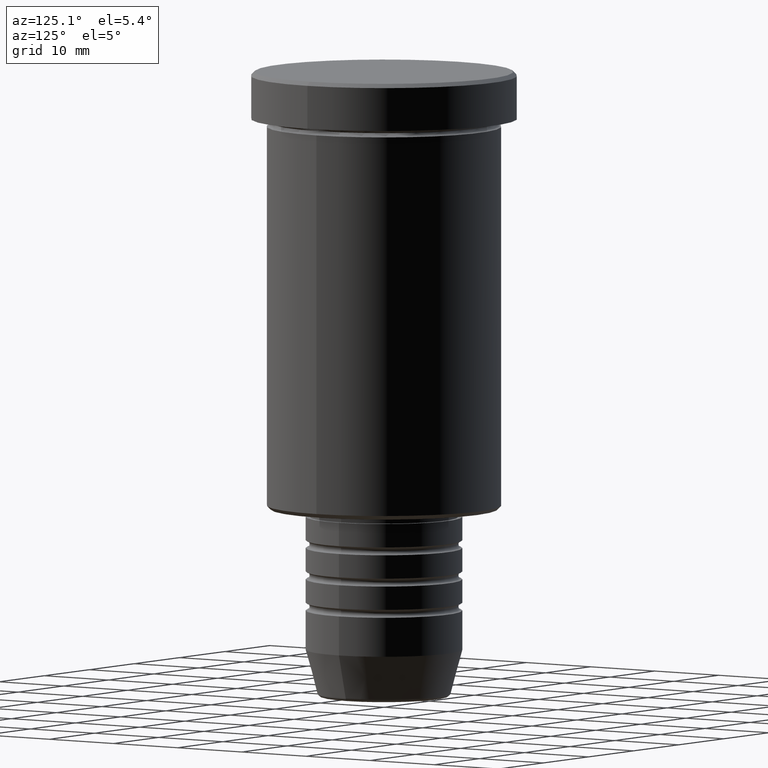
[diagram: clean part render]
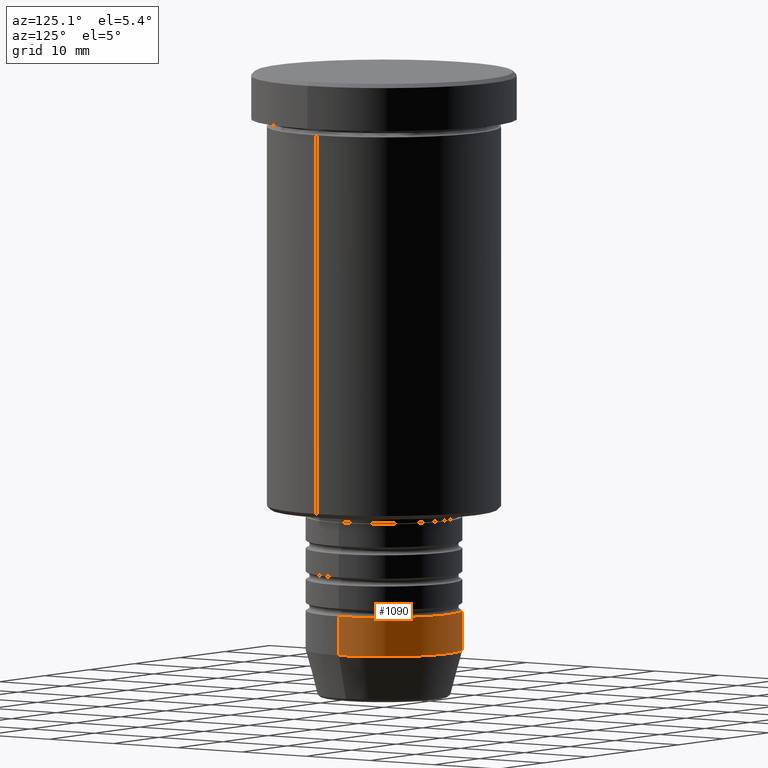
[diagram: same view with one face highlighted and labeled with its STEP entity id]
A machine part, auxiliary view. The second image highlights one B-rep face of the part: STEP entity #1090.
In plain terms, the highlighted cylindrical surface (partial cylindrical patch) has radius 10 mm, axis along (-0, -0, 1).
Its self-contained STEP definition (entity closure, byte-faithful):
#16 = CARTESIAN_POINT ( 'NONE',  ( 0.000000000000000000, 0.000000000000000000, -74.00000000000001421 ) ) ;
#33 = EDGE_CURVE ( 'NONE', #1043, #997, #1073, .T. ) ;
#69 = VERTEX_POINT ( 'NONE', #802 ) ;
#84 = CIRCLE ( 'NONE', #1102, 10.00000000000000000 ) ;
#119 = ORIENTED_EDGE ( 'NONE', *, *, #154, .T. ) ;
#154 = EDGE_CURVE ( 'NONE', #69, #161, #272, .T. ) ;
#161 = VERTEX_POINT ( 'NONE', #173 ) ;
#173 = CARTESIAN_POINT ( 'NONE',  ( -10.00000000000000000, 1.224646799147353256E-15, -69.00000000000000000 ) ) ;
#222 = FACE_OUTER_BOUND ( 'NONE', #711, .T. ) ;
#228 = CIRCLE ( 'NONE', #902, 10.00000000000000178 ) ;
#272 = LINE ( 'NONE', #353, #648 ) ;
#286 = EDGE_CURVE ( 'NONE', #997, #161, #84, .T. ) ;
#287 = DIRECTION ( 'NONE',  ( -0.000000000000000000, -0.000000000000000000, 1.000000000000000000 ) ) ;
#296 = AXIS2_PLACEMENT_3D ( 'NONE', #958, #872, #409 ) ;
#348 = DIRECTION ( 'NONE',  ( -0.000000000000000000, -0.000000000000000000, 1.000000000000000000 ) ) ;
#353 = CARTESIAN_POINT ( 'NONE',  ( -10.00000000000000178, 1.224646799147353454E-15, 0.000000000000000000 ) ) ;
#367 = ORIENTED_EDGE ( 'NONE', *, *, #286, .F. ) ;
#409 = DIRECTION ( 'NONE',  ( 1.000000000000000000, 0.000000000000000000, 0.000000000000000000 ) ) ;
#503 = CYLINDRICAL_SURFACE ( 'NONE', #296, 10.00000000000000178 ) ;
#514 = EDGE_CURVE ( 'NONE', #1043, #69, #228, .T. ) ;
#518 = CARTESIAN_POINT ( 'NONE',  ( 10.00000000000000178, 0.000000000000000000, 0.000000000000000000 ) ) ;
#533 = VECTOR ( 'NONE', #1135, 1000.000000000000000 ) ;
#568 = ORIENTED_EDGE ( 'NONE', *, *, #33, .F. ) ;
#577 = ORIENTED_EDGE ( 'NONE', *, *, #514, .T. ) ;
#641 = DIRECTION ( 'NONE',  ( -0.000000000000000000, -0.000000000000000000, 1.000000000000000000 ) ) ;
#648 = VECTOR ( 'NONE', #641, 1000.000000000000000 ) ;
#658 = DIRECTION ( 'NONE',  ( 1.000000000000000000, 0.000000000000000000, 0.000000000000000000 ) ) ;
#711 = EDGE_LOOP ( 'NONE', ( #577, #119, #367, #568 ) ) ;
#727 = CARTESIAN_POINT ( 'NONE',  ( 0.000000000000000000, 0.000000000000000000, -69.00000000000000000 ) ) ;
#802 = CARTESIAN_POINT ( 'NONE',  ( -10.00000000000000178, 1.224646799147353454E-15, -74.00000000000001421 ) ) ;
#858 = CARTESIAN_POINT ( 'NONE',  ( 10.00000000000000178, 0.000000000000000000, -74.00000000000001421 ) ) ;
#872 = DIRECTION ( 'NONE',  ( -0.000000000000000000, -0.000000000000000000, 1.000000000000000000 ) ) ;
#902 = AXIS2_PLACEMENT_3D ( 'NONE', #16, #287, #658 ) ;
#958 = CARTESIAN_POINT ( 'NONE',  ( 0.000000000000000000, 0.000000000000000000, 0.000000000000000000 ) ) ;
#996 = DIRECTION ( 'NONE',  ( 1.000000000000000000, 0.000000000000000000, 0.000000000000000000 ) ) ;
#997 = VERTEX_POINT ( 'NONE', #1183 ) ;
#1043 = VERTEX_POINT ( 'NONE', #858 ) ;
#1073 = LINE ( 'NONE', #518, #533 ) ;
#1090 = ADVANCED_FACE ( 'NONE', ( #222 ), #503, .T. ) ;
#1102 = AXIS2_PLACEMENT_3D ( 'NONE', #727, #348, #996 ) ;
#1135 = DIRECTION ( 'NONE',  ( -0.000000000000000000, -0.000000000000000000, 1.000000000000000000 ) ) ;
#1183 = CARTESIAN_POINT ( 'NONE',  ( 10.00000000000000000, 0.000000000000000000, -69.00000000000000000 ) ) ;